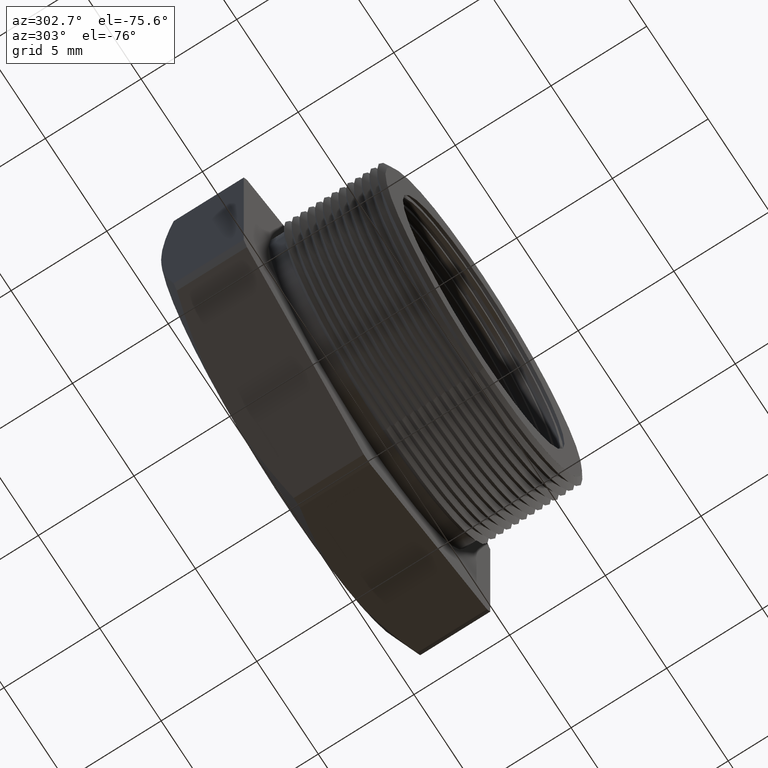
[diagram: clean part render]
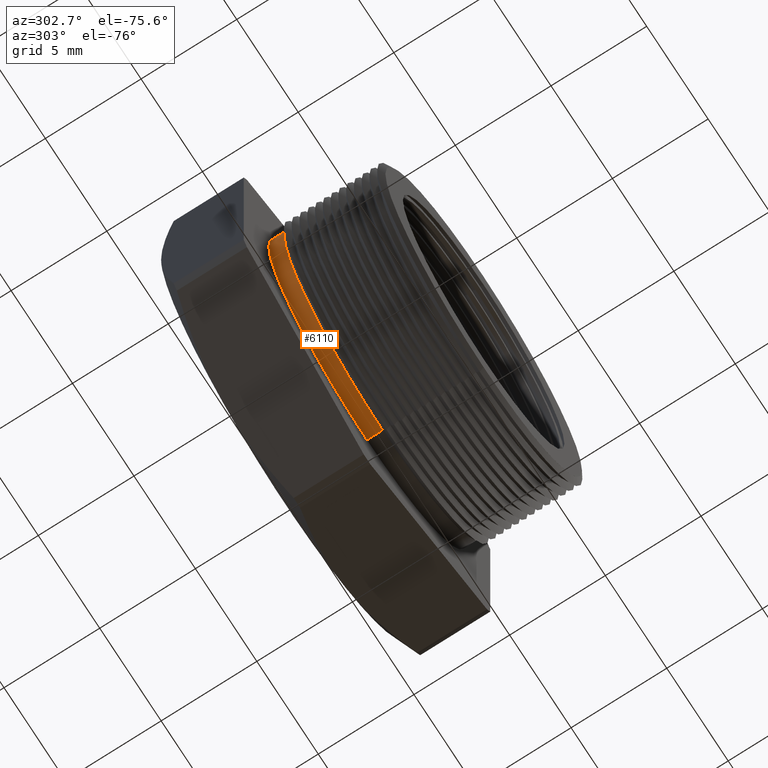
[diagram: same view with one face highlighted and labeled with its STEP entity id]
A machine part, auxiliary view. The second image highlights one B-rep face of the part: STEP entity #6110.
In plain terms, the highlighted cylindrical surface (partial cylindrical patch) has radius 8.001 mm, axis along (-0, -1, -0).
Its self-contained STEP definition (entity closure, byte-faithful):
#1819 = CARTESIAN_POINT ( 'NONE',  ( 0.0000000000000000000, 0.2055072448100089500, -0.3150000000000000000 ) ) ;
#2775 = CARTESIAN_POINT ( 'NONE',  ( 3.857637417314162700E-017, 0.2055072448100089500, 0.3150000000000000000 ) ) ;
#4364 = DIRECTION ( 'NONE',  ( 0.0000000000000000000, 0.0000000000000000000, -1.000000000000000000 ) ) ;
#4365 = DIRECTION ( 'NONE',  ( -0.0000000000000000000, -1.000000000000000000, -0.0000000000000000000 ) ) ;
#4366 = CARTESIAN_POINT ( 'NONE',  ( 0.0000000000000000000, 0.2375548905829479900, 0.0000000000000000000 ) ) ;
#4367 = AXIS2_PLACEMENT_3D ( 'NONE', #4366, #4365, #4364 ) ;
#4368 = CIRCLE ( 'NONE', #4367, 0.3150000000000000000 ) ;
#4369 = DIRECTION ( 'NONE',  ( 0.0000000000000000000, 0.0000000000000000000, -1.000000000000000000 ) ) ;
#4370 = DIRECTION ( 'NONE',  ( -0.0000000000000000000, -1.000000000000000000, -0.0000000000000000000 ) ) ;
#4371 = CARTESIAN_POINT ( 'NONE',  ( 0.0000000000000000000, 0.0000000000000000000, 0.0000000000000000000 ) ) ;
#4372 = AXIS2_PLACEMENT_3D ( 'NONE', #4371, #4370, #4369 ) ;
#4373 = CYLINDRICAL_SURFACE ( 'NONE', #4372, 0.3150000000000000000 ) ;
#4374 = FACE_OUTER_BOUND ( 'NONE', #6111, .T. ) ;
#4423 = DIRECTION ( 'NONE',  ( 0.0000000000000000000, 0.0000000000000000000, -1.000000000000000000 ) ) ;
#4424 = DIRECTION ( 'NONE',  ( 0.0000000000000000000, -1.000000000000000000, 0.0000000000000000000 ) ) ;
#4425 = CARTESIAN_POINT ( 'NONE',  ( 0.0000000000000000000, 0.2055072448100089500, 0.0000000000000000000 ) ) ;
#4426 = AXIS2_PLACEMENT_3D ( 'NONE', #4425, #4424, #4423 ) ;
#4427 = CIRCLE ( 'NONE', #4426, 0.3150000000000000000 ) ;
#4818 = VERTEX_POINT ( 'NONE', #1819 ) ;
#5277 = VERTEX_POINT ( 'NONE', #2775 ) ;
#6110 = ADVANCED_FACE ( 'NONE', ( #4374 ), #4373, .T. ) ;
#6111 = EDGE_LOOP ( 'NONE', ( #6112, #6113, #6115, #6116 ) ) ;
#6112 = ORIENTED_EDGE ( 'NONE', *, *, #6557, .F. ) ;
#6113 = ORIENTED_EDGE ( 'NONE', *, *, #6114, .T. ) ;
#6114 = EDGE_CURVE ( 'NONE', #6539, #6561, #4368, .T. ) ;
#6115 = ORIENTED_EDGE ( 'NONE', *, *, #6559, .T. ) ;
#6116 = ORIENTED_EDGE ( 'NONE', *, *, #6117, .F. ) ;
#6117 = EDGE_CURVE ( 'NONE', #5277, #4818, #4427, .T. ) ;
#6208 = CARTESIAN_POINT ( 'NONE',  ( 3.857637417314162700E-017, 0.2375548905829479900, 0.3150000000000000000 ) ) ;
#6240 = CARTESIAN_POINT ( 'NONE',  ( 0.0000000000000000000, 0.2375548905829479900, -0.3150000000000000000 ) ) ;
#6242 = DIRECTION ( 'NONE',  ( -0.0000000000000000000, -1.000000000000000000, -0.0000000000000000000 ) ) ;
#6243 = VECTOR ( 'NONE', #6242, 39.37007874015748100 ) ;
#6244 = CARTESIAN_POINT ( 'NONE',  ( 0.0000000000000000000, 0.0000000000000000000, -0.3150000000000000000 ) ) ;
#6245 = LINE ( 'NONE', #6244, #6243 ) ;
#6246 = DIRECTION ( 'NONE',  ( -0.0000000000000000000, -1.000000000000000000, -0.0000000000000000000 ) ) ;
#6247 = VECTOR ( 'NONE', #6246, 39.37007874015748100 ) ;
#6248 = CARTESIAN_POINT ( 'NONE',  ( 3.857637417314162700E-017, 0.0000000000000000000, 0.3150000000000000000 ) ) ;
#6249 = LINE ( 'NONE', #6248, #6247 ) ;
#6539 = VERTEX_POINT ( 'NONE', #6208 ) ;
#6557 = EDGE_CURVE ( 'NONE', #6539, #5277, #6249, .T. ) ;
#6559 = EDGE_CURVE ( 'NONE', #6561, #4818, #6245, .T. ) ;
#6561 = VERTEX_POINT ( 'NONE', #6240 ) ;